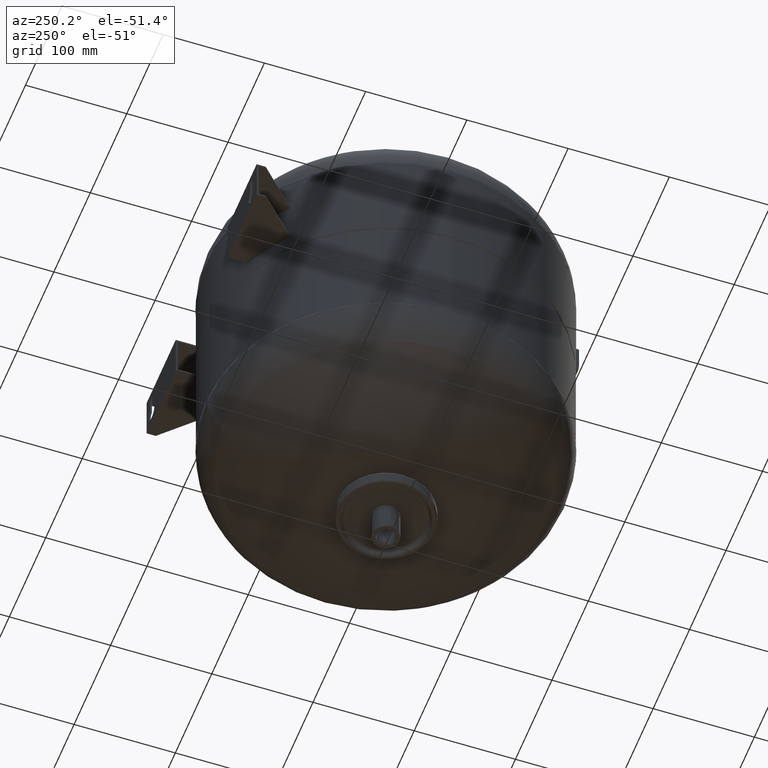
[diagram: clean part render]
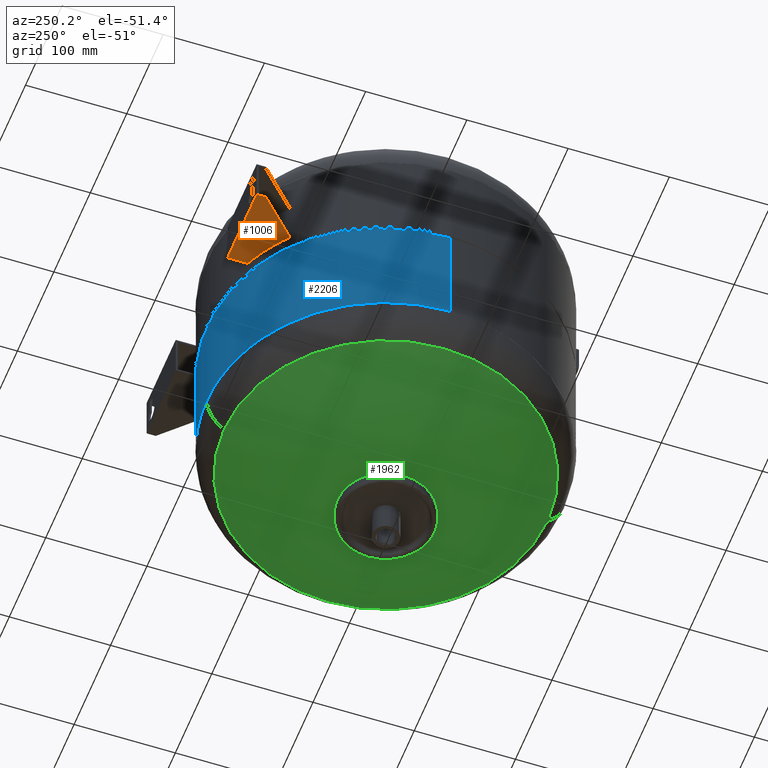
[diagram: same view with three faces highlighted in distinct colors, each labeled with its STEP entity id]
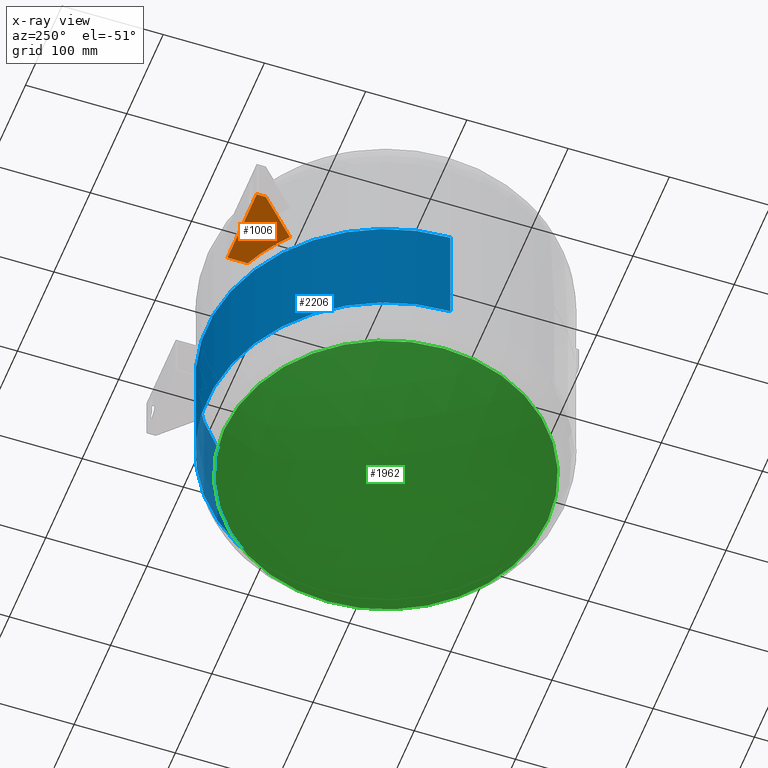
[diagram: x-ray of the same camera — body ghosted, the three highlighted faces saturated]
A machine part, auxiliary view with three faces highlighted in distinct colors.
The next image is the same camera in x-ray (body ghosted, the three faces saturated) — at least one of them is partly hidden behind the body in this view.
Their STEP definitions:

[orange] entity #1006 — the highlighted face is a freeform B-spline surface patch.
#876=CARTESIAN_POINT('',(-113.6735737837013,135.67357378370127,255.5));
#877=VERTEX_POINT('',#876);
#878=CARTESIAN_POINT('',(-71.0,162.13574559608995,255.5));
#879=VERTEX_POINT('',#878);
#880=CARTESIAN_POINT('',(-5.684342E-014,-4.350819E-031,255.5));
#881=DIRECTION('',(-4.887835E-018,5.833810E-018,-1.0));
#882=DIRECTION('',(-0.642223580698877,0.766517366009612,7.610799E-018));
#883=AXIS2_PLACEMENT_3D('',#880,#881,#882);
#884=CIRCLE('',#883,176.99999999999994);
#885=EDGE_CURVE('',#877,#879,#884,.T.);
#949=CARTESIAN_POINT('',(-151.0,173.0,255.5));
#950=VERTEX_POINT('',#949);
#951=CARTESIAN_POINT('',(-151.0,173.0,255.5));
#952=DIRECTION('',(0.707106781186547,-0.707106781186548,0.0));
#953=VECTOR('',#952,52.787538190008298);
#954=LINE('',#951,#953);
#955=EDGE_CURVE('',#950,#877,#954,.T.);
#975=CARTESIAN_POINT('',(-150.99999999999997,182.0,255.50000000000003));
#976=CARTESIAN_POINT('',(-71.0,182.0,255.50000000000003));
#977=CARTESIAN_POINT('',(-150.99999999999997,135.67357378370124,255.50000000000003));
#978=CARTESIAN_POINT('',(-71.0,135.67357378370127,255.50000000000003));
#979=B_SPLINE_SURFACE_WITH_KNOTS('',1,1,((#975,#977),(#976,#978)),.UNSPECIFIED.,.F.,.F.,.U.,(2,2),(2,2),(0.0,79.999999999999972),(0.0,46.326426216298756),.UNSPECIFIED.);
#980=ORIENTED_EDGE('',*,*,#955,.F.);
#981=CARTESIAN_POINT('',(-151.0,182.0,255.5));
#982=VERTEX_POINT('',#981);
#983=CARTESIAN_POINT('',(-151.0,182.0,255.5));
#984=DIRECTION('',(0.0,-1.0,0.0));
#985=VECTOR('',#984,9.0);
#986=LINE('',#983,#985);
#987=EDGE_CURVE('',#982,#950,#986,.T.);
#988=ORIENTED_EDGE('',*,*,#987,.F.);
#989=CARTESIAN_POINT('',(-71.0,182.0,255.50000000000003));
#990=VERTEX_POINT('',#989);
#991=CARTESIAN_POINT('',(-71.0,182.0,255.50000000000003));
#992=DIRECTION('',(-1.0,0.0,0.0));
#993=VECTOR('',#992,80.0);
#994=LINE('',#991,#993);
#995=EDGE_CURVE('',#990,#982,#994,.T.);
#996=ORIENTED_EDGE('',*,*,#995,.F.);
#997=CARTESIAN_POINT('',(-71.0,182.0,255.50000000000003));
#998=DIRECTION('',(0.0,-1.0,0.0));
#999=VECTOR('',#998,19.864254403910053);
#1000=LINE('',#997,#999);
#1001=EDGE_CURVE('',#990,#879,#1000,.T.);
#1002=ORIENTED_EDGE('',*,*,#1001,.T.);
#1003=ORIENTED_EDGE('',*,*,#885,.F.);
#1004=EDGE_LOOP('',(#980,#988,#996,#1002,#1003));
#1005=FACE_OUTER_BOUND('',#1004,.T.);
#1006=ADVANCED_FACE('',(#1005),#979,.T.);

[blue] entity #2206 — the highlighted cylindrical surface (partial cylindrical patch) has radius 177 mm, axis along (0, 0, 1).
#2060=CARTESIAN_POINT('',(176.99999999999994,0.0,237.49999999999994));
#2061=VERTEX_POINT('',#2060);
#2062=CARTESIAN_POINT('',(176.99999999999991,0.0,127.99999999999997));
#2063=VERTEX_POINT('',#2062);
#2064=CARTESIAN_POINT('',(176.99999999999994,0.0,237.49999999999994));
#2065=DIRECTION('',(0.0,0.0,-1.0));
#2066=VECTOR('',#2065,109.49999999999997);
#2067=LINE('',#2064,#2066);
#2068=EDGE_CURVE('',#2061,#2063,#2067,.T.);
#2070=CARTESIAN_POINT('',(-176.99999999999994,-2.167553E-014,237.49999999999994));
#2071=VERTEX_POINT('',#2070);
#2079=CARTESIAN_POINT('',(-176.99999999999994,-2.167553E-014,127.99999999999997));
#2080=VERTEX_POINT('',#2079);
#2081=CARTESIAN_POINT('',(-176.99999999999994,-2.167553E-014,237.49999999999994));
#2082=DIRECTION('',(0.0,0.0,-1.0));
#2083=VECTOR('',#2082,109.49999999999997);
#2084=LINE('',#2081,#2083);
#2085=EDGE_CURVE('',#2071,#2080,#2084,.T.);
#2178=CARTESIAN_POINT('',(0.0,0.0,127.99999999999997));
#2179=DIRECTION('',(0.0,0.0,1.0));
#2180=DIRECTION('',(1.0,0.0,0.0));
#2181=AXIS2_PLACEMENT_3D('',#2178,#2179,#2180);
#2182=CIRCLE('',#2181,176.99999999999991);
#2183=EDGE_CURVE('',#2063,#2080,#2182,.T.);
#2189=CARTESIAN_POINT('',(0.0,0.0,186.24999999999994));
#2190=DIRECTION('',(0.0,0.0,1.0));
#2191=DIRECTION('',(1.0,0.0,0.0));
#2192=AXIS2_PLACEMENT_3D('',#2189,#2190,#2191);
#2193=CYLINDRICAL_SURFACE('',#2192,176.99999999999994);
#2194=ORIENTED_EDGE('',*,*,#2068,.T.);
#2195=ORIENTED_EDGE('',*,*,#2183,.T.);
#2196=ORIENTED_EDGE('',*,*,#2085,.F.);
#2197=CARTESIAN_POINT('',(0.0,0.0,237.49999999999994));
#2198=DIRECTION('',(0.0,0.0,1.0));
#2199=DIRECTION('',(1.0,0.0,0.0));
#2200=AXIS2_PLACEMENT_3D('',#2197,#2198,#2199);
#2201=CIRCLE('',#2200,176.99999999999994);
#2202=EDGE_CURVE('',#2061,#2071,#2201,.T.);
#2203=ORIENTED_EDGE('',*,*,#2202,.F.);
#2204=EDGE_LOOP('',(#2194,#2195,#2196,#2203));
#2205=FACE_OUTER_BOUND('',#2204,.T.);
#2206=ADVANCED_FACE('',(#2205),#2193,.T.);

[green] entity #1962 — the highlighted spherical surface has radius 258 mm.
#1901=CARTESIAN_POINT('',(-2.506731E-015,-159.88732394366201,92.515324920293054));
#1902=VERTEX_POINT('',#1901);
#1918=CARTESIAN_POINT('',(-2.208663E-014,159.88732394366201,92.515324920293111));
#1919=VERTEX_POINT('',#1918);
#1927=CARTESIAN_POINT('',(-159.88732394366201,6.518429E-015,92.515324920293097));
#1928=VERTEX_POINT('',#1927);
#1929=CARTESIAN_POINT('',(-7.041844E-016,6.518429E-015,92.515324920293082));
#1930=DIRECTION('',(0.0,0.0,1.0));
#1931=DIRECTION('',(-1.0,0.0,0.0));
#1932=AXIS2_PLACEMENT_3D('',#1929,#1930,#1931);
#1933=CIRCLE('',#1932,159.88732394366201);
#1934=EDGE_CURVE('',#1919,#1928,#1933,.T.);
#1936=CARTESIAN_POINT('',(-7.041844E-016,6.518429E-015,92.515324920293082));
#1937=DIRECTION('',(0.0,0.0,1.0));
#1938=DIRECTION('',(-1.0,0.0,0.0));
#1939=AXIS2_PLACEMENT_3D('',#1936,#1937,#1938);
#1940=CIRCLE('',#1939,159.88732394366201);
#1941=EDGE_CURVE('',#1928,#1902,#1940,.T.);
#1946=CARTESIAN_POINT('',(-4.090320E-014,-3.067740E-014,295.00000000000006));
#1947=DIRECTION('',(0.0,-1.0,0.0));
#1948=DIRECTION('',(1.0,0.0,0.0));
#1949=AXIS2_PLACEMENT_3D('',#1946,#1947,#1948);
#1950=SPHERICAL_SURFACE('',#1949,258.00000000000006);
#1951=ORIENTED_EDGE('',*,*,#1941,.F.);
#1952=ORIENTED_EDGE('',*,*,#1934,.F.);
#1953=CARTESIAN_POINT('',(-7.041844E-016,6.518429E-015,92.515324920293082));
#1954=DIRECTION('',(0.0,0.0,1.0));
#1955=DIRECTION('',(-1.0,0.0,0.0));
#1956=AXIS2_PLACEMENT_3D('',#1953,#1954,#1955);
#1957=CIRCLE('',#1956,159.88732394366201);
#1958=EDGE_CURVE('',#1902,#1919,#1957,.T.);
#1959=ORIENTED_EDGE('',*,*,#1958,.F.);
#1960=EDGE_LOOP('',(#1951,#1952,#1959));
#1961=FACE_OUTER_BOUND('',#1960,.T.);
#1962=ADVANCED_FACE('',(#1961),#1950,.T.);